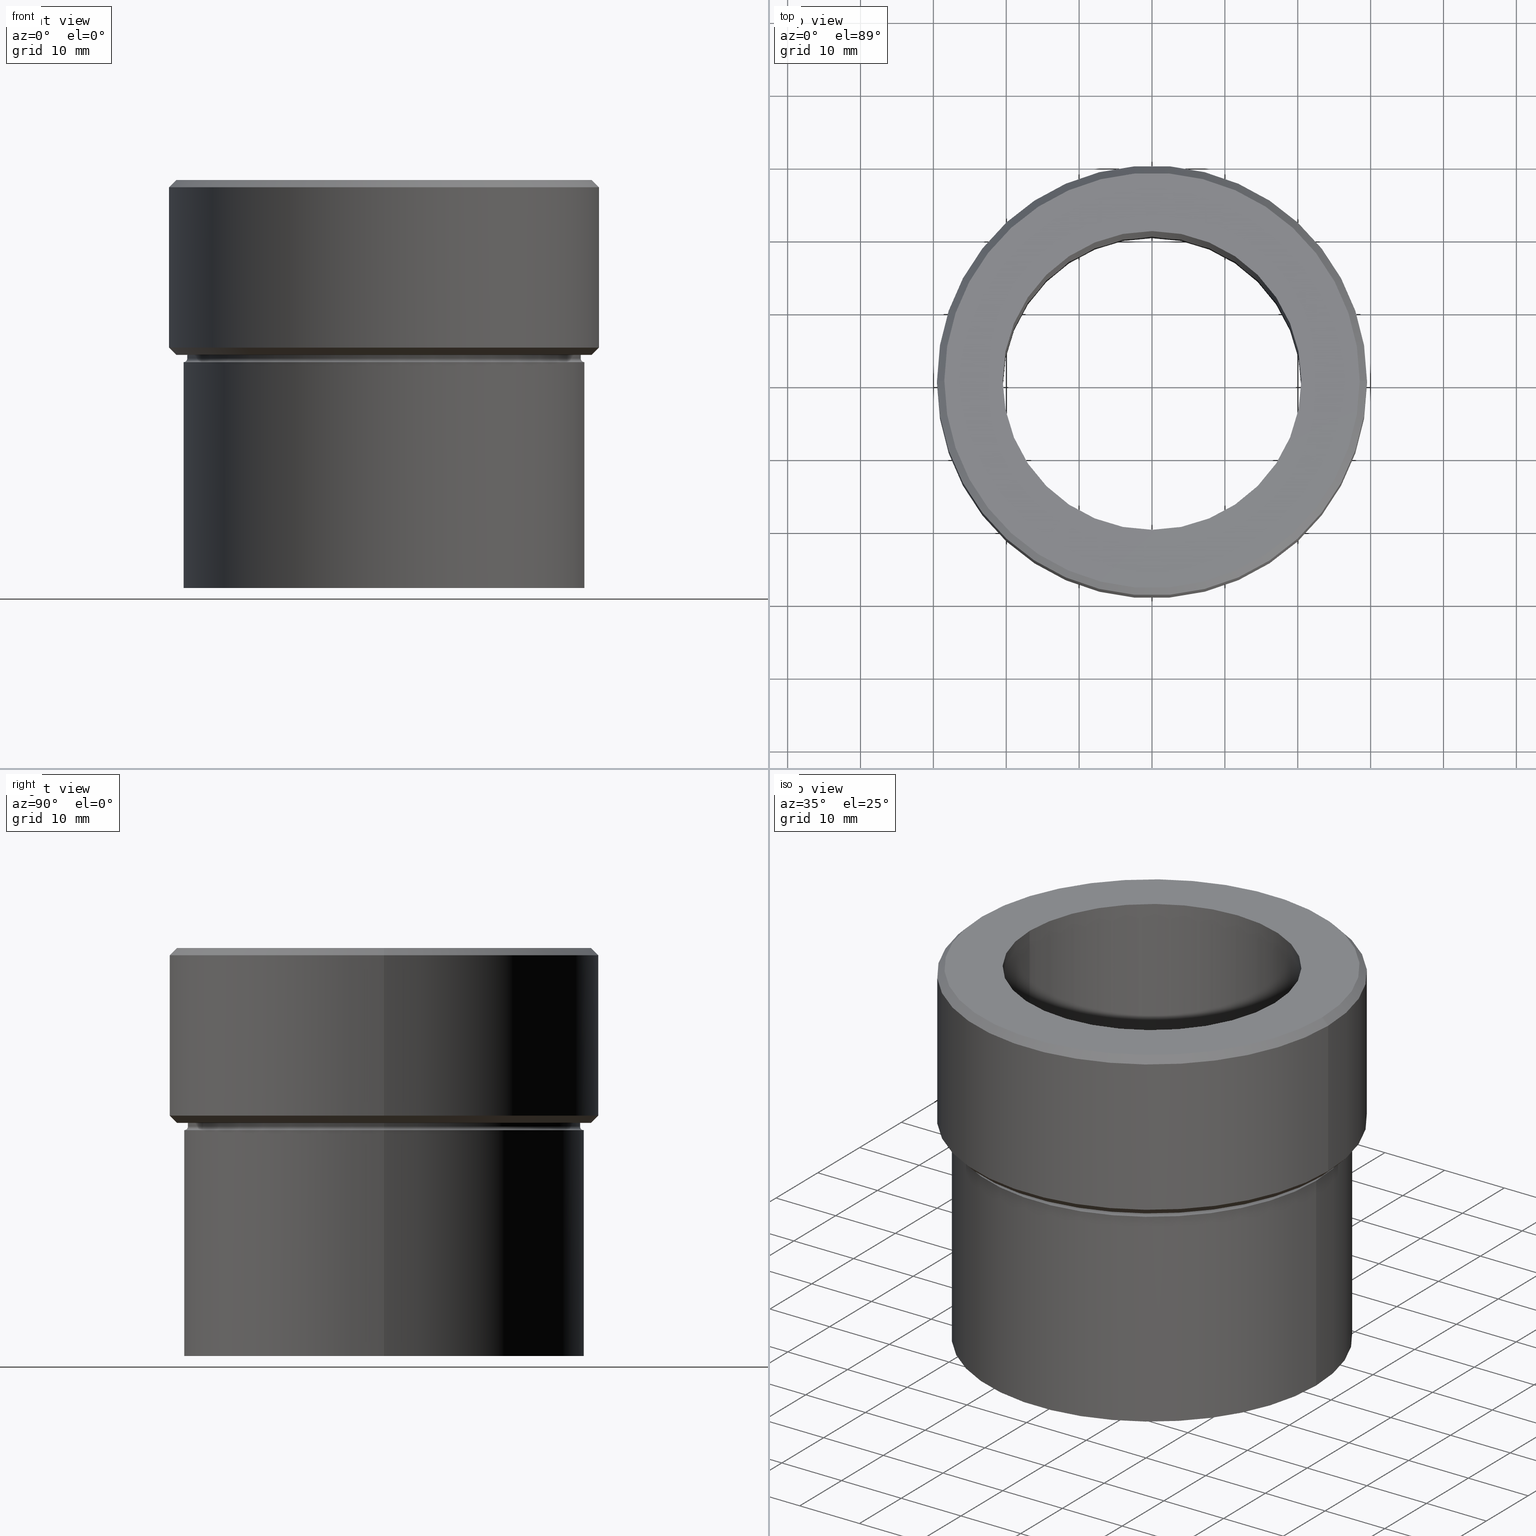
[diagram: canonical four-view strip — front | top / right | iso, engineering-drawing reading convention]
A machine part, canonical four-view strip (front | top / right | iso — engineering-drawing reading convention). The complete STEP part file that produces these views, byte-faithful:
ISO-10303-21;
HEADER;
FILE_DESCRIPTION (( 'STEP AP203' ),
    '1' );
FILE_NAME ('7c15.STEP',
    '2024-01-08T12:24:20',
    ( '' ),
    ( '' ),
    'SwSTEP 2.0',
    'SolidWorks 2019',
    '' );
FILE_SCHEMA (( 'CONFIG_CONTROL_DESIGN' ));
ENDSEC;

DATA;
#1 = DIRECTION ( 'NONE',  ( 1.000000000000000000, 0.000000000000000000, 0.000000000000000000 ) ) ;
#2 = ORIENTED_EDGE ( 'NONE', *, *, #433, .F. ) ;
#3 = CARTESIAN_POINT ( 'NONE',  ( 0.000000000000000000, 29.50000000000000000, -24.00000000000000000 ) ) ;
#4 = EDGE_CURVE ( 'NONE', #325, #446, #497, .T. ) ;
#5 = ORIENTED_EDGE ( 'NONE', *, *, #4, .T. ) ;
#6 = AXIS2_PLACEMENT_3D ( 'NONE', #429, #229, #460 ) ;
#7 = CARTESIAN_POINT ( 'NONE',  ( 20.50000000000000000, 0.000000000000000000, -56.00000000000000711 ) ) ;
#8 = ORIENTED_EDGE ( 'NONE', *, *, #162, .F. ) ;
#9 = APPROVAL_ROLE ( '' ) ;
#10 = ORIENTED_EDGE ( 'NONE', *, *, #306, .F. ) ;
#11 = EDGE_CURVE ( 'NONE', #33, #415, #373, .T. ) ;
#12 = CALENDAR_DATE ( 2024, 8, 1 ) ;
#13 = DIRECTION ( 'NONE',  ( -0.000000000000000000, -0.000000000000000000, 1.000000000000000000 ) ) ;
#14 = VECTOR ( 'NONE', #524, 1000.000000000000000 ) ;
#15 = AXIS2_PLACEMENT_3D ( 'NONE', #453, #74, #250 ) ;
#16 = CARTESIAN_POINT ( 'NONE',  ( -20.50000000000000000, 2.510525938252074481E-15, -56.00000000000000711 ) ) ;
#17 = FACE_BOUND ( 'NONE', #399, .T. ) ;
#18 = CYLINDRICAL_SURFACE ( 'NONE', #425, 20.50000000000000000 ) ;
#19 = EDGE_CURVE ( 'NONE', #439, #81, #264, .T. ) ;
#20 = CALENDAR_DATE ( 2024, 8, 1 ) ;
#21 = AXIS2_PLACEMENT_3D ( 'NONE', #506, #176, #179 ) ;
#22 = CARTESIAN_POINT ( 'NONE',  ( 0.000000000000000000, 0.000000000000000000, -24.49999999999999645 ) ) ;
#23 = FACE_OUTER_BOUND ( 'NONE', #36, .T. ) ;
#24 = ADVANCED_FACE ( 'NONE', ( #260 ), #471, .T. ) ;
#25 = DIRECTION ( 'NONE',  ( 0.000000000000000000, 0.000000000000000000, -1.000000000000000000 ) ) ;
#26 = ORIENTED_EDGE ( 'NONE', *, *, #31, .T. ) ;
#27 = AXIS2_PLACEMENT_3D ( 'NONE', #22, #239, #153 ) ;
#28 = CARTESIAN_POINT ( 'NONE',  ( -20.50000000000000000, 2.510525938252074481E-15, -75.00000000000000000 ) ) ;
#29 = ORIENTED_EDGE ( 'NONE', *, *, #123, .T. ) ;
#30 = CARTESIAN_POINT ( 'NONE',  ( 0.000000000000000000, 0.000000000000000000, -24.00000000000000000 ) ) ;
#31 = EDGE_CURVE ( 'NONE', #129, #217, #383, .T. ) ;
#32 = CARTESIAN_POINT ( 'NONE',  ( 27.50000000000000355, 0.000000000000000000, 0.000000000000000000 ) ) ;
#33 = VERTEX_POINT ( 'NONE', #56 ) ;
#34 = AXIS2_PLACEMENT_3D ( 'NONE', #472, #25, #234 ) ;
#35 = LINE ( 'NONE', #284, #100 ) ;
#36 = EDGE_LOOP ( 'NONE', ( #280, #78, #449, #10 ) ) ;
#37 = FACE_OUTER_BOUND ( 'NONE', #164, .T. ) ;
#38 = EDGE_LOOP ( 'NONE', ( #522, #64 ) ) ;
#39 = CIRCLE ( 'NONE', #181, 28.49999999999998224 ) ;
#40 = CARTESIAN_POINT ( 'NONE',  ( -28.49999999999998224, 0.000000000000000000, 0.000000000000000000 ) ) ;
#41 = ORIENTED_EDGE ( 'NONE', *, *, #479, .F. ) ;
#42 = CARTESIAN_POINT ( 'NONE',  ( -28.49999999999998224, 0.000000000000000000, 0.000000000000000000 ) ) ;
#43 = ORIENTED_EDGE ( 'NONE', *, *, #456, .T. ) ;
#44 = DATE_TIME_ROLE ( 'creation_date' ) ;
#45 = ORIENTED_EDGE ( 'NONE', *, *, #319, .T. ) ;
#46 = EDGE_CURVE ( 'NONE', #358, #217, #417, .T. ) ;
#47 = DIRECTION ( 'NONE',  ( 1.000000000000000000, 0.000000000000000000, 0.000000000000000000 ) ) ;
#48 = CIRCLE ( 'NONE', #509, 20.50000000000000000 ) ;
#49 = DIRECTION ( 'NONE',  ( -0.000000000000000000, -0.000000000000000000, 1.000000000000000000 ) ) ;
#50 =( NAMED_UNIT ( * ) SI_UNIT ( $, .STERADIAN. ) SOLID_ANGLE_UNIT ( ) );
#51 = CARTESIAN_POINT ( 'NONE',  ( 0.000000000000000000, 0.000000000000000000, -24.00000000000000000 ) ) ;
#52 = PERSON_AND_ORGANIZATION_ROLE ( 'classification_officer' ) ;
#53 = FACE_OUTER_BOUND ( 'NONE', #107, .T. ) ;
#54 = DIRECTION ( 'NONE',  ( 1.000000000000000000, 0.000000000000000000, 0.000000000000000000 ) ) ;
#55 = EDGE_CURVE ( 'NONE', #446, #325, #86, .T. ) ;
#56 = CARTESIAN_POINT ( 'NONE',  ( 28.49999999999998224, 3.551475717527322452E-15, 0.000000000000000000 ) ) ;
#57 = CIRCLE ( 'NONE', #191, 27.50000000000000355 ) ;
#58 = DIRECTION ( 'NONE',  ( -0.000000000000000000, -0.000000000000000000, 1.000000000000000000 ) ) ;
#59 = CIRCLE ( 'NONE', #168, 29.50000000000000000 ) ;
#60 = DIRECTION ( 'NONE',  ( -0.000000000000000000, -0.000000000000000000, 1.000000000000000000 ) ) ;
#61 = EDGE_LOOP ( 'NONE', ( #192, #490, #289, #256 ) ) ;
#62 = EDGE_CURVE ( 'NONE', #443, #478, #187, .T. ) ;
#63 = DIRECTION ( 'NONE',  ( 1.000000000000000000, 0.000000000000000000, 0.000000000000000000 ) ) ;
#64 = ORIENTED_EDGE ( 'NONE', *, *, #278, .F. ) ;
#65 = DIRECTION ( 'NONE',  ( 0.000000000000000000, 0.000000000000000000, -1.000000000000000000 ) ) ;
#66 = CIRCLE ( 'NONE', #159, 29.50000000000000000 ) ;
#67 = FACE_OUTER_BOUND ( 'NONE', #172, .T. ) ;
#68 = CARTESIAN_POINT ( 'NONE',  ( -27.50000000000000355, 3.367778697655222096E-15, -24.99999999999999645 ) ) ;
#69 = ORIENTED_EDGE ( 'NONE', *, *, #62, .F. ) ;
#70 = AXIS2_PLACEMENT_3D ( 'NONE', #3, #80, #294 ) ;
#71 = FACE_OUTER_BOUND ( 'NONE', #151, .T. ) ;
#72 = ORIENTED_EDGE ( 'NONE', *, *, #401, .F. ) ;
#73 = DIRECTION ( 'NONE',  ( 0.000000000000000000, 0.000000000000000000, -1.000000000000000000 ) ) ;
#74 = DIRECTION ( 'NONE',  ( -0.000000000000000000, -0.000000000000000000, 1.000000000000000000 ) ) ;
#75 = AXIS2_PLACEMENT_3D ( 'NONE', #257, #263, #342 ) ;
#76 = PRODUCT_DEFINITION ( 'NEZN�M�', '', #79, #189 ) ;
#77 = DIRECTION ( 'NONE',  ( -1.000000000000000000, 0.000000000000000000, -0.000000000000000000 ) ) ;
#78 = ORIENTED_EDGE ( 'NONE', *, *, #178, .T. ) ;
#79 = PRODUCT_DEFINITION_FORMATION_WITH_SPECIFIED_SOURCE ( 'LIBOVOLN�', '', #286, .NOT_KNOWN. ) ;
#80 = DIRECTION ( 'NONE',  ( 0.000000000000000000, 0.000000000000000000, -1.000000000000000000 ) ) ;
#81 = VERTEX_POINT ( 'NONE', #16 ) ;
#82 = CARTESIAN_POINT ( 'NONE',  ( 29.50000000000000000, 0.000000000000000000, -22.99999999999999289 ) ) ;
#84 = AXIS2_PLACEMENT_3D ( 'NONE', #450, #128, #326 ) ;
#83 = CC_DESIGN_PERSON_AND_ORGANIZATION_ASSIGNMENT ( #427, #52, ( #422 ) ) ;
#85 = ORIENTED_EDGE ( 'NONE', *, *, #350, .F. ) ;
#86 = CIRCLE ( 'NONE', #75, 29.50000000000000000 ) ;
#87 = VECTOR ( 'NONE', #140, 1000.000000000000000 ) ;
#88 = PERSON_AND_ORGANIZATION_ROLE ( 'creator' ) ;
#89 = DIRECTION ( 'NONE',  ( -1.000000000000000000, 1.224646799147349509E-16, 0.000000000000000000 ) ) ;
#90 =( LENGTH_UNIT ( ) NAMED_UNIT ( * ) SI_UNIT ( .MILLI., .METRE. ) );
#91 = AXIS2_PLACEMENT_3D ( 'NONE', #144, #183, #142 ) ;
#92 = FACE_OUTER_BOUND ( 'NONE', #133, .T. ) ;
#93 = CALENDAR_DATE ( 2024, 8, 1 ) ;
#94 = CARTESIAN_POINT ( 'NONE',  ( 27.00000000000000355, 0.000000000000000000, -24.00000000000000000 ) ) ;
#95 = CIRCLE ( 'NONE', #467, 28.49999999999998224 ) ;
#96 = ADVANCED_FACE ( 'NONE', ( #92 ), #513, .F. ) ;
#97 = FACE_OUTER_BOUND ( 'NONE', #330, .T. ) ;
#98 = DIRECTION ( 'NONE',  ( -0.000000000000000000, -0.000000000000000000, 1.000000000000000000 ) ) ;
#99 = DIRECTION ( 'NONE',  ( 1.000000000000000000, 0.000000000000000000, 0.000000000000000000 ) ) ;
#100 = VECTOR ( 'NONE', #163, 1000.000000000000000 ) ;
#101 = DIRECTION ( 'NONE',  ( 1.000000000000000000, 0.000000000000000000, 0.000000000000000000 ) ) ;
#102 = EDGE_CURVE ( 'NONE', #478, #217, #487, .T. ) ;
#103 = ORIENTED_EDGE ( 'NONE', *, *, #319, .F. ) ;
#104 = AXIS2_PLACEMENT_3D ( 'NONE', #477, #108, #398 ) ;
#105 = PERSON_AND_ORGANIZATION ( #122, #360 ) ;
#106 = DIRECTION ( 'NONE',  ( 0.000000000000000000, 0.000000000000000000, -1.000000000000000000 ) ) ;
#107 = EDGE_LOOP ( 'NONE', ( #334, #26, #274, #2 ) ) ;
#108 = DIRECTION ( 'NONE',  ( -0.000000000000000000, -0.000000000000000000, 1.000000000000000000 ) ) ;
#109 = ORIENTED_EDGE ( 'NONE', *, *, #178, .F. ) ;
#110 =( GEOMETRIC_REPRESENTATION_CONTEXT ( 3 ) GLOBAL_UNCERTAINTY_ASSIGNED_CONTEXT ( ( #482 ) ) GLOBAL_UNIT_ASSIGNED_CONTEXT ( ( #90, #384, #50 ) ) REPRESENTATION_CONTEXT ( 'NONE', 'WORKASPACE' ) );
#111 = DIRECTION ( 'NONE',  ( -1.000000000000000000, 0.000000000000000000, 0.000000000000000000 ) ) ;
#112 = ORIENTED_EDGE ( 'NONE', *, *, #123, .F. ) ;
#113 = CIRCLE ( 'NONE', #451, 27.00000000000000355 ) ;
#114 = EDGE_CURVE ( 'NONE', #358, #211, #348, .T. ) ;
#115 = DIRECTION ( 'NONE',  ( -0.000000000000000000, -0.000000000000000000, 1.000000000000000000 ) ) ;
#116 = ORIENTED_EDGE ( 'NONE', *, *, #4, .F. ) ;
#117 = APPLICATION_CONTEXT ( 'configuration controlled 3d designs of mechanical parts and assemblies' ) ;
#118 = CARTESIAN_POINT ( 'NONE',  ( 0.000000000000000000, 0.000000000000000000, 0.000000000000000000 ) ) ;
#119 = ORIENTED_EDGE ( 'NONE', *, *, #456, .F. ) ;
#120 = LOCAL_TIME ( 13, 24, 20.00000000000000000, #418 ) ;
#121 = DIRECTION ( 'NONE',  ( 1.000000000000000000, 0.000000000000000000, 0.000000000000000000 ) ) ;
#122 = PERSON ( 'NEUR�EN�', 'NEUR�EN�', 'NEUR�EN�', ('NEUR�EN�'), ('NEUR�EN�'), ('NEUR�EN�') ) ;
#123 = EDGE_CURVE ( 'NONE', #155, #211, #113, .T. ) ;
#124 = EDGE_LOOP ( 'NONE', ( #364, #45, #379, #72 ) ) ;
#125 = CIRCLE ( 'NONE', #246, 27.50000000000000711 ) ;
#126 = FACE_BOUND ( 'NONE', #404, .T. ) ;
#127 = ORIENTED_EDGE ( 'NONE', *, *, #251, .T. ) ;
#128 = DIRECTION ( 'NONE',  ( -0.000000000000000000, -0.000000000000000000, 1.000000000000000000 ) ) ;
#129 = VERTEX_POINT ( 'NONE', #303 ) ;
#130 = APPROVAL ( #378, 'NEUR�EN�' ) ;
#131 = APPROVAL_PERSON_ORGANIZATION ( #219, #130, #9 ) ;
#132 = CARTESIAN_POINT ( 'NONE',  ( 27.00000000000000355, 0.000000000000000000, -24.49999999999999645 ) ) ;
#133 = EDGE_LOOP ( 'NONE', ( #109, #332, #455, #69 ) ) ;
#134 = CALENDAR_DATE ( 2024, 8, 1 ) ;
#135 = CIRCLE ( 'NONE', #233, 28.49999999999998224 ) ;
#136 = DIRECTION ( 'NONE',  ( 1.000000000000000000, 0.000000000000000000, 0.000000000000000000 ) ) ;
#137 = MECHANICAL_CONTEXT ( 'NONE', #117, 'mechanical' ) ;
#138 = CARTESIAN_POINT ( 'NONE',  ( -27.00000000000000355, 3.306546357697854128E-15, 0.000000000000000000 ) ) ;
#139 = APPROVAL_DATE_TIME ( #507, #526 ) ;
#140 = DIRECTION ( 'NONE',  ( -0.000000000000000000, -0.000000000000000000, 1.000000000000000000 ) ) ;
#141 = APPROVAL ( #431, 'NEUR�EN�' ) ;
#142 = DIRECTION ( 'NONE',  ( 1.000000000000000000, 0.000000000000000000, 0.000000000000000000 ) ) ;
#143 = CYLINDRICAL_SURFACE ( 'NONE', #441, 27.50000000000000355 ) ;
#144 = CARTESIAN_POINT ( 'NONE',  ( 0.000000000000000000, 0.000000000000000000, 0.000000000000000000 ) ) ;
#145 = DIRECTION ( 'NONE',  ( 1.000000000000000000, 0.000000000000000000, 0.000000000000000000 ) ) ;
#146 = ADVANCED_FACE ( 'NONE', ( #53 ), #143, .T. ) ;
#147 = DATE_AND_TIME ( #20, #371 ) ;
#148 = DIRECTION ( 'NONE',  ( -0.000000000000000000, -0.000000000000000000, 1.000000000000000000 ) ) ;
#149 = AXIS2_PLACEMENT_3D ( 'NONE', #527, #73, #77 ) ;
#150 = FACE_OUTER_BOUND ( 'NONE', #61, .T. ) ;
#151 = EDGE_LOOP ( 'NONE', ( #269, #127 ) ) ;
#152 = AXIS2_PLACEMENT_3D ( 'NONE', #51, #308, #344 ) ;
#153 = DIRECTION ( 'NONE',  ( 1.000000000000000000, 0.000000000000000000, 0.000000000000000000 ) ) ;
#154 = CALENDAR_DATE ( 2024, 8, 1 ) ;
#155 = VERTEX_POINT ( 'NONE', #94 ) ;
#156 = EDGE_CURVE ( 'NONE', #411, #129, #125, .T. ) ;
#157 = LOCAL_TIME ( 13, 24, 20.00000000000000000, #341 ) ;
#158 = DIRECTION ( 'NONE',  ( -0.000000000000000000, -0.000000000000000000, 1.000000000000000000 ) ) ;
#159 = AXIS2_PLACEMENT_3D ( 'NONE', #215, #291, #121 ) ;
#160 = CARTESIAN_POINT ( 'NONE',  ( 0.000000000000000000, 0.000000000000000000, 0.000000000000000000 ) ) ;
#161 = ORIENTED_EDGE ( 'NONE', *, *, #385, .T. ) ;
#162 = EDGE_CURVE ( 'NONE', #483, #327, #374, .T. ) ;
#163 = DIRECTION ( 'NONE',  ( -0.000000000000000000, -0.000000000000000000, 1.000000000000000000 ) ) ;
#164 = EDGE_LOOP ( 'NONE', ( #194, #530, #112, #41 ) ) ;
#165 = DATE_AND_TIME ( #154, #201 ) ;
#166 = LINE ( 'NONE', #32, #351 ) ;
#167 = ORIENTED_EDGE ( 'NONE', *, *, #216, .T. ) ;
#168 = AXIS2_PLACEMENT_3D ( 'NONE', #355, #106, #518 ) ;
#169 = DIRECTION ( 'NONE',  ( -0.000000000000000000, -0.000000000000000000, 1.000000000000000000 ) ) ;
#170 = EDGE_LOOP ( 'NONE', ( #356, #8, #161, #116 ) ) ;
#171 = CARTESIAN_POINT ( 'NONE',  ( 0.000000000000000000, 0.000000000000000000, 0.000000000000000000 ) ) ;
#172 = EDGE_LOOP ( 'NONE', ( #103, #245, #366, #370 ) ) ;
#173 = CARTESIAN_POINT ( 'NONE',  ( 0.000000000000000000, 0.000000000000000000, 0.000000000000000000 ) ) ;
#174 = DIRECTION ( 'NONE',  ( 1.224646799147353207E-16, 1.000000000000000000, 0.000000000000000000 ) ) ;
#175 = CONICAL_SURFACE ( 'NONE', #225, 29.50000000000000000, 0.7853981633974517207 ) ;
#176 = DIRECTION ( 'NONE',  ( -0.000000000000000000, -0.000000000000000000, 1.000000000000000000 ) ) ;
#177 = VECTOR ( 'NONE', #428, 1000.000000000000000 ) ;
#178 = EDGE_CURVE ( 'NONE', #358, #443, #287, .T. ) ;
#179 = DIRECTION ( 'NONE',  ( 1.000000000000000000, 0.000000000000000000, 0.000000000000000000 ) ) ;
#180 = PERSON_AND_ORGANIZATION ( #122, #360 ) ;
#181 = AXIS2_PLACEMENT_3D ( 'NONE', #160, #324, #408 ) ;
#182 = CARTESIAN_POINT ( 'NONE',  ( 0.000000000000000000, 0.000000000000000000, -75.00000000000000000 ) ) ;
#183 = DIRECTION ( 'NONE',  ( 0.000000000000000000, 0.000000000000000000, 1.000000000000000000 ) ) ;
#184 = DIRECTION ( 'NONE',  ( 1.000000000000000000, 0.000000000000000000, 0.000000000000000000 ) ) ;
#185 = CIRCLE ( 'NONE', #254, 20.50000000000000000 ) ;
#186 = ADVANCED_FACE ( 'NONE', ( #386 ), #18, .F. ) ;
#187 = CIRCLE ( 'NONE', #444, 0.5000000000000004441 ) ;
#188 = LINE ( 'NONE', #349, #321 ) ;
#189 = DESIGN_CONTEXT ( 'detailed design', #206, 'design' ) ;
#190 = DIRECTION ( 'NONE',  ( -0.000000000000000000, -0.000000000000000000, 1.000000000000000000 ) ) ;
#191 = AXIS2_PLACEMENT_3D ( 'NONE', #410, #529, #1 ) ;
#192 = ORIENTED_EDGE ( 'NONE', *, *, #31, .F. ) ;
#193 = CARTESIAN_POINT ( 'NONE',  ( 0.000000000000000000, 0.000000000000000000, 0.000000000000000000 ) ) ;
#194 = ORIENTED_EDGE ( 'NONE', *, *, #350, .T. ) ;
#195 = CLOSED_SHELL ( 'NONE', ( #186, #96, #440, #205, #146, #463, #24, #511, #312, #407, #335, #368, #448, #197, #238, #258, #298 ) ) ;
#196 = DIRECTION ( 'NONE',  ( 1.000000000000000000, 0.000000000000000000, 0.000000000000000000 ) ) ;
#197 = ADVANCED_FACE ( 'NONE', ( #462 ), #175, .T. ) ;
#198 = ORIENTED_EDGE ( 'NONE', *, *, #414, .T. ) ;
#199 = LINE ( 'NONE', #28, #14 ) ;
#200 = ORIENTED_EDGE ( 'NONE', *, *, #306, .T. ) ;
#201 = LOCAL_TIME ( 13, 24, 20.00000000000000000, #516 ) ;
#202 = PLANE ( 'NONE',  #149 ) ;
#203 = EDGE_LOOP ( 'NONE', ( #220, #520, #276, #353 ) ) ;
#205 = ADVANCED_FACE ( 'NONE', ( #299 ), #495, .T. ) ;
#204 = AXIS2_PLACEMENT_3D ( 'NONE', #309, #60, #275 ) ;
#206 = APPLICATION_CONTEXT ( 'configuration controlled 3d designs of mechanical parts and assemblies' ) ;
#207 = CARTESIAN_POINT ( 'NONE',  ( -29.50000000000000000, 3.612708057484691604E-15, -22.99999999999999289 ) ) ;
#208 = ORIENTED_EDGE ( 'NONE', *, *, #102, .T. ) ;
#209 = COORDINATED_UNIVERSAL_TIME_OFFSET ( 1, 0, .AHEAD. ) ;
#210 = CARTESIAN_POINT ( 'NONE',  ( 27.50000000000000711, 0.000000000000000000, -56.00000000000000711 ) ) ;
#211 = VERTEX_POINT ( 'NONE', #434 ) ;
#212 = VECTOR ( 'NONE', #247, 1000.000000000000114 ) ;
#213 = CARTESIAN_POINT ( 'NONE',  ( -20.50000000000000000, 2.510525938252074481E-15, 0.000000000000000000 ) ) ;
#214 = ORIENTED_EDGE ( 'NONE', *, *, #391, .T. ) ;
#215 = CARTESIAN_POINT ( 'NONE',  ( 0.000000000000000000, 0.000000000000000000, -1.000000000000004441 ) ) ;
#216 = EDGE_CURVE ( 'NONE', #415, #435, #59, .T. ) ;
#217 = VERTEX_POINT ( 'NONE', #68 ) ;
#218 = ADVANCED_BREP_SHAPE_REPRESENTATION ( '7c15', ( #402, #91 ), #110 ) ;
#219 = PERSON_AND_ORGANIZATION ( #122, #360 ) ;
#220 = ORIENTED_EDGE ( 'NONE', *, *, #345, .F. ) ;
#221 = CC_DESIGN_APPROVAL ( #526, ( #76 ) ) ;
#222 = PERSON_AND_ORGANIZATION_ROLE ( 'design_supplier' ) ;
#223 = DIRECTION ( 'NONE',  ( -0.000000000000000000, -0.000000000000000000, 1.000000000000000000 ) ) ;
#224 = CC_DESIGN_PERSON_AND_ORGANIZATION_ASSIGNMENT ( #387, #512, ( #76 ) ) ;
#225 = AXIS2_PLACEMENT_3D ( 'NONE', #267, #432, #136 ) ;
#226 = DIRECTION ( 'NONE',  ( 1.000000000000000000, 0.000000000000000000, 0.000000000000000000 ) ) ;
#227 = DIRECTION ( 'NONE',  ( -0.000000000000000000, -0.000000000000000000, 1.000000000000000000 ) ) ;
#228 = APPLICATION_PROTOCOL_DEFINITION ( 'international standard', 'config_control_design', 1994, #206 ) ;
#229 = DIRECTION ( 'NONE',  ( 0.000000000000000000, 0.000000000000000000, -1.000000000000000000 ) ) ;
#230 = CC_DESIGN_PERSON_AND_ORGANIZATION_ASSIGNMENT ( #180, #255, ( #286 ) ) ;
#231 = SHAPE_DEFINITION_REPRESENTATION ( #393, #218 ) ;
#232 = CARTESIAN_POINT ( 'NONE',  ( 27.50000000000000355, 0.000000000000000000, -24.49999999999999645 ) ) ;
#233 = AXIS2_PLACEMENT_3D ( 'NONE', #30, #442, #481 ) ;
#234 = DIRECTION ( 'NONE',  ( -1.000000000000000000, 0.000000000000000000, 0.000000000000000000 ) ) ;
#235 = ORIENTED_EDGE ( 'NONE', *, *, #46, .F. ) ;
#236 = DIRECTION ( 'NONE',  ( 1.000000000000000000, 0.000000000000000000, 0.000000000000000000 ) ) ;
#237 = ORIENTED_EDGE ( 'NONE', *, *, #55, .T. ) ;
#238 = ADVANCED_FACE ( 'NONE', ( #515 ), #484, .T. ) ;
#239 = DIRECTION ( 'NONE',  ( -0.000000000000000000, -0.000000000000000000, 1.000000000000000000 ) ) ;
#240 = CIRCLE ( 'NONE', #304, 27.00000000000000355 ) ;
#241 = CYLINDRICAL_SURFACE ( 'NONE', #338, 20.50000000000000000 ) ;
#242 = CARTESIAN_POINT ( 'NONE',  ( -29.50000000000000000, 3.612708057484691604E-15, -22.99999999999999289 ) ) ;
#243 = PRODUCT_RELATED_PRODUCT_CATEGORY ( 'detail', '', ( #286 ) ) ;
#244 = CARTESIAN_POINT ( 'NONE',  ( 29.50000000000000000, 0.000000000000000000, -22.99999999999999289 ) ) ;
#245 = ORIENTED_EDGE ( 'NONE', *, *, #272, .T. ) ;
#246 = AXIS2_PLACEMENT_3D ( 'NONE', #390, #49, #424 ) ;
#247 = DIRECTION ( 'NONE',  ( -0.7071067811865500152, 8.659560562354963673E-17, 0.7071067811865451302 ) ) ;
#248 = ORIENTED_EDGE ( 'NONE', *, *, #11, .F. ) ;
#249 = DIRECTION ( 'NONE',  ( 1.000000000000000000, 0.000000000000000000, 0.000000000000000000 ) ) ;
#250 = DIRECTION ( 'NONE',  ( -1.000000000000000000, 0.000000000000000000, 0.000000000000000000 ) ) ;
#251 = EDGE_CURVE ( 'NONE', #327, #483, #135, .T. ) ;
#252 = CARTESIAN_POINT ( 'NONE',  ( 29.50000000000000000, 0.000000000000000000, -1.000000000000004441 ) ) ;
#253 = ORIENTED_EDGE ( 'NONE', *, *, #251, .F. ) ;
#254 = AXIS2_PLACEMENT_3D ( 'NONE', #320, #315, #270 ) ;
#255 = PERSON_AND_ORGANIZATION_ROLE ( 'design_owner' ) ;
#256 = ORIENTED_EDGE ( 'NONE', *, *, #488, .F. ) ;
#257 = CARTESIAN_POINT ( 'NONE',  ( 0.000000000000000000, 0.000000000000000000, -22.99999999999999289 ) ) ;
#258 = ADVANCED_FACE ( 'NONE', ( #359 ), #261, .F. ) ;
#259 = LOCAL_TIME ( 13, 24, 20.00000000000000000, #503 ) ;
#260 = FACE_OUTER_BOUND ( 'NONE', #419, .T. ) ;
#261 = TOROIDAL_SURFACE ( 'NONE', #27, 27.50000000000000355, 0.5000000000000000000 ) ;
#262 = PERSON_AND_ORGANIZATION ( #122, #360 ) ;
#263 = DIRECTION ( 'NONE',  ( -0.000000000000000000, -0.000000000000000000, 1.000000000000000000 ) ) ;
#264 = CIRCLE ( 'NONE', #6, 20.50000000000000000 ) ;
#265 = DIRECTION ( 'NONE',  ( -0.000000000000000000, -0.000000000000000000, 1.000000000000000000 ) ) ;
#266 = CARTESIAN_POINT ( 'NONE',  ( -27.50000000000000355, 3.367778697655222096E-15, -24.49999999999999645 ) ) ;
#267 = CARTESIAN_POINT ( 'NONE',  ( 0.000000000000000000, 0.000000000000000000, -22.99999999999999289 ) ) ;
#268 = CARTESIAN_POINT ( 'NONE',  ( 0.000000000000000000, 0.000000000000000000, -24.49999999999999645 ) ) ;
#269 = ORIENTED_EDGE ( 'NONE', *, *, #162, .T. ) ;
#270 = DIRECTION ( 'NONE',  ( 1.000000000000000000, 0.000000000000000000, 0.000000000000000000 ) ) ;
#271 = EDGE_LOOP ( 'NONE', ( #502, #525 ) ) ;
#272 = EDGE_CURVE ( 'NONE', #81, #439, #346, .T. ) ;
#273 = DIRECTION ( 'NONE',  ( -0.000000000000000000, -0.000000000000000000, 1.000000000000000000 ) ) ;
#274 = ORIENTED_EDGE ( 'NONE', *, *, #102, .F. ) ;
#275 = DIRECTION ( 'NONE',  ( 1.000000000000000000, 0.000000000000000000, 0.000000000000000000 ) ) ;
#276 = ORIENTED_EDGE ( 'NONE', *, *, #377, .F. ) ;
#277 = AXIS2_PLACEMENT_3D ( 'NONE', #504, #98, #184 ) ;
#278 = EDGE_CURVE ( 'NONE', #129, #411, #389, .T. ) ;
#279 = CARTESIAN_POINT ( 'NONE',  ( -27.00000000000000355, 3.306546357697854128E-15, -24.49999999999999645 ) ) ;
#280 = ORIENTED_EDGE ( 'NONE', *, *, #114, .F. ) ;
#281 = DIRECTION ( 'NONE',  ( -0.000000000000000000, -0.000000000000000000, 1.000000000000000000 ) ) ;
#282 = EDGE_LOOP ( 'NONE', ( #235, #85, #292, #208 ) ) ;
#283 = APPROVAL_PERSON_ORGANIZATION ( #423, #526, #343 ) ;
#284 = CARTESIAN_POINT ( 'NONE',  ( 20.50000000000000000, 0.000000000000000000, -75.00000000000000000 ) ) ;
#285 = EDGE_LOOP ( 'NONE', ( #248, #119, #214, #486 ) ) ;
#286 = PRODUCT ( '7c15', '7c15', '', ( #137 ) ) ;
#287 = CIRCLE ( 'NONE', #354, 27.00000000000000355 ) ;
#288 = DIRECTION ( 'NONE',  ( -1.000000000000000000, 0.000000000000000000, 0.000000000000000000 ) ) ;
#289 = ORIENTED_EDGE ( 'NONE', *, *, #433, .T. ) ;
#290 = EDGE_CURVE ( 'NONE', #437, #496, #185, .T. ) ;
#291 = DIRECTION ( 'NONE',  ( 0.000000000000000000, 0.000000000000000000, -1.000000000000000000 ) ) ;
#292 = ORIENTED_EDGE ( 'NONE', *, *, #62, .T. ) ;
#293 = CC_DESIGN_APPROVAL ( #130, ( #79 ) ) ;
#294 = DIRECTION ( 'NONE',  ( -1.000000000000000000, 0.000000000000000000, -0.000000000000000000 ) ) ;
#295 = ORIENTED_EDGE ( 'NONE', *, *, #55, .F. ) ;
#296 = VECTOR ( 'NONE', #492, 1000.000000000000114 ) ;
#297 = DATE_AND_TIME ( #134, #259 ) ;
#298 = ADVANCED_FACE ( 'NONE', ( #67 ), #241, .F. ) ;
#299 = FACE_OUTER_BOUND ( 'NONE', #316, .T. ) ;
#300 = CARTESIAN_POINT ( 'NONE',  ( 0.000000000000000000, 0.000000000000000000, -24.49999999999999645 ) ) ;
#301 = VECTOR ( 'NONE', #169, 1000.000000000000000 ) ;
#302 = DATE_AND_TIME ( #12, #120 ) ;
#303 = CARTESIAN_POINT ( 'NONE',  ( -27.50000000000001066, 3.367778697655222885E-15, -56.00000000000000711 ) ) ;
#304 = AXIS2_PLACEMENT_3D ( 'NONE', #268, #158, #236 ) ;
#305 = CARTESIAN_POINT ( 'NONE',  ( 0.000000000000000000, 0.000000000000000000, 0.000000000000000000 ) ) ;
#306 = EDGE_CURVE ( 'NONE', #211, #155, #474, .T. ) ;
#307 = APPLICATION_PROTOCOL_DEFINITION ( 'international standard', 'config_control_design', 1994, #117 ) ;
#308 = DIRECTION ( 'NONE',  ( 0.000000000000000000, 0.000000000000000000, -1.000000000000000000 ) ) ;
#309 = CARTESIAN_POINT ( 'NONE',  ( 0.000000000000000000, 0.000000000000000000, -56.00000000000000711 ) ) ;
#310 = CYLINDRICAL_SURFACE ( 'NONE', #84, 27.50000000000000355 ) ;
#312 = ADVANCED_FACE ( 'NONE', ( #352 ), #357, .T. ) ;
#311 = AXIS2_PLACEMENT_3D ( 'NONE', #193, #148, #392 ) ;
#313 = VECTOR ( 'NONE', #223, 1000.000000000000000 ) ;
#314 = DATE_TIME_ROLE ( 'classification_date' ) ;
#315 = DIRECTION ( 'NONE',  ( -0.000000000000000000, -0.000000000000000000, 1.000000000000000000 ) ) ;
#316 = EDGE_LOOP ( 'NONE', ( #253, #198, #295, #322 ) ) ;
#317 = CARTESIAN_POINT ( 'NONE',  ( 0.000000000000000000, 0.000000000000000000, -22.99999999999999289 ) ) ;
#318 = ORIENTED_EDGE ( 'NONE', *, *, #505, .F. ) ;
#319 = EDGE_CURVE ( 'NONE', #81, #496, #199, .T. ) ;
#320 = CARTESIAN_POINT ( 'NONE',  ( 0.000000000000000000, 0.000000000000000000, 0.000000000000000000 ) ) ;
#321 = VECTOR ( 'NONE', #517, 1000.000000000000000 ) ;
#322 = ORIENTED_EDGE ( 'NONE', *, *, #385, .F. ) ;
#323 = AXIS2_PLACEMENT_3D ( 'NONE', #266, #174, #89 ) ;
#324 = DIRECTION ( 'NONE',  ( -0.000000000000000000, -0.000000000000000000, 1.000000000000000000 ) ) ;
#325 = VERTEX_POINT ( 'NONE', #242 ) ;
#326 = DIRECTION ( 'NONE',  ( 1.000000000000000000, 0.000000000000000000, 0.000000000000000000 ) ) ;
#327 = VERTEX_POINT ( 'NONE', #436 ) ;
#328 = PLANE ( 'NONE',  #70 ) ;
#329 = CC_DESIGN_DATE_AND_TIME_ASSIGNMENT ( #147, #314, ( #422 ) ) ;
#330 = EDGE_LOOP ( 'NONE', ( #43, #409 ) ) ;
#331 = CARTESIAN_POINT ( 'NONE',  ( 0.000000000000000000, 0.000000000000000000, 0.000000000000000000 ) ) ;
#332 = ORIENTED_EDGE ( 'NONE', *, *, #46, .T. ) ;
#333 = DIRECTION ( 'NONE',  ( 0.000000000000000000, 0.000000000000000000, -1.000000000000000000 ) ) ;
#334 = ORIENTED_EDGE ( 'NONE', *, *, #156, .T. ) ;
#335 = ADVANCED_FACE ( 'NONE', ( #23 ), #485, .T. ) ;
#336 = CARTESIAN_POINT ( 'NONE',  ( -29.50000000000000000, 3.612708057484691604E-15, 0.000000000000000000 ) ) ;
#337 = DIRECTION ( 'NONE',  ( 0.000000000000000000, 0.000000000000000000, -1.000000000000000000 ) ) ;
#338 = AXIS2_PLACEMENT_3D ( 'NONE', #475, #190, #400 ) ;
#339 = VECTOR ( 'NONE', #457, 1000.000000000000000 ) ;
#340 = DIRECTION ( 'NONE',  ( 1.000000000000000000, 0.000000000000000000, 0.000000000000000000 ) ) ;
#341 = COORDINATED_UNIVERSAL_TIME_OFFSET ( 1, 0, .AHEAD. ) ;
#342 = DIRECTION ( 'NONE',  ( -1.000000000000000000, 0.000000000000000000, 0.000000000000000000 ) ) ;
#343 = APPROVAL_ROLE ( '' ) ;
#344 = DIRECTION ( 'NONE',  ( -1.000000000000000000, 0.000000000000000000, 0.000000000000000000 ) ) ;
#345 = EDGE_CURVE ( 'NONE', #33, #493, #95, .T. ) ;
#346 = CIRCLE ( 'NONE', #416, 20.50000000000000000 ) ;
#347 = PLANE ( 'NONE',  #464 ) ;
#348 = LINE ( 'NONE', #138, #87 ) ;
#349 = CARTESIAN_POINT ( 'NONE',  ( 29.50000000000000000, 0.000000000000000000, 0.000000000000000000 ) ) ;
#350 = EDGE_CURVE ( 'NONE', #443, #358, #240, .T. ) ;
#351 = VECTOR ( 'NONE', #452, 1000.000000000000000 ) ;
#352 = FACE_OUTER_BOUND ( 'NONE', #473, .T. ) ;
#353 = ORIENTED_EDGE ( 'NONE', *, *, #391, .F. ) ;
#354 = AXIS2_PLACEMENT_3D ( 'NONE', #300, #227, #340 ) ;
#355 = CARTESIAN_POINT ( 'NONE',  ( 0.000000000000000000, 0.000000000000000000, -1.000000000000004441 ) ) ;
#356 = ORIENTED_EDGE ( 'NONE', *, *, #414, .F. ) ;
#357 = CYLINDRICAL_SURFACE ( 'NONE', #311, 29.50000000000000000 ) ;
#358 = VERTEX_POINT ( 'NONE', #279 ) ;
#359 = FACE_OUTER_BOUND ( 'NONE', #282, .T. ) ;
#360 = ORGANIZATION ( 'NEUR�EN�', 'NEUR�EN�', '' ) ;
#361 = EDGE_CURVE ( 'NONE', #446, #415, #188, .T. ) ;
#362 = FACE_BOUND ( 'NONE', #271, .T. ) ;
#363 = AXIS2_PLACEMENT_3D ( 'NONE', #317, #445, #63 ) ;
#364 = ORIENTED_EDGE ( 'NONE', *, *, #19, .T. ) ;
#365 = CARTESIAN_POINT ( 'NONE',  ( 27.00000000000000355, 0.000000000000000000, 0.000000000000000000 ) ) ;
#366 = ORIENTED_EDGE ( 'NONE', *, *, #401, .T. ) ;
#367 = APPROVAL_DATE_TIME ( #165, #141 ) ;
#368 = ADVANCED_FACE ( 'NONE', ( #150 ), #310, .T. ) ;
#369 = CARTESIAN_POINT ( 'NONE',  ( 28.49999999999998224, 0.000000000000000000, -24.00000000000000000 ) ) ;
#370 = ORIENTED_EDGE ( 'NONE', *, *, #290, .T. ) ;
#371 = LOCAL_TIME ( 13, 24, 20.00000000000000000, #209 ) ;
#372 = LINE ( 'NONE', #365, #301 ) ;
#373 = LINE ( 'NONE', #382, #177 ) ;
#374 = CIRCLE ( 'NONE', #152, 28.49999999999998224 ) ;
#375 = CARTESIAN_POINT ( 'NONE',  ( -29.50000000000000000, 3.612708057484691604E-15, -1.000000000000004441 ) ) ;
#376 = ORIENTED_EDGE ( 'NONE', *, *, #290, .F. ) ;
#377 = EDGE_CURVE ( 'NONE', #435, #415, #66, .T. ) ;
#378 = APPROVAL_STATUS ( 'not_yet_approved' ) ;
#379 = ORIENTED_EDGE ( 'NONE', *, *, #500, .T. ) ;
#380 = CONICAL_SURFACE ( 'NONE', #523, 28.49999999999998224, 0.7853981633974533860 ) ;
#381 = SECURITY_CLASSIFICATION_LEVEL ( 'unclassified' ) ;
#382 = CARTESIAN_POINT ( 'NONE',  ( 28.49999999999998224, 3.490243377569954483E-15, 0.000000000000000000 ) ) ;
#383 = LINE ( 'NONE', #508, #313 ) ;
#384 =( NAMED_UNIT ( * ) PLANE_ANGLE_UNIT ( ) SI_UNIT ( $, .RADIAN. ) );
#385 = EDGE_CURVE ( 'NONE', #483, #446, #454, .T. ) ;
#386 = FACE_OUTER_BOUND ( 'NONE', #124, .T. ) ;
#387 = PERSON_AND_ORGANIZATION ( #122, #360 ) ;
#388 = DIRECTION ( 'NONE',  ( 0.000000000000000000, -1.000000000000000000, 0.000000000000000000 ) ) ;
#389 = CIRCLE ( 'NONE', #204, 27.50000000000000711 ) ;
#390 = CARTESIAN_POINT ( 'NONE',  ( 0.000000000000000000, 0.000000000000000000, -56.00000000000000711 ) ) ;
#391 = EDGE_CURVE ( 'NONE', #493, #435, #403, .T. ) ;
#392 = DIRECTION ( 'NONE',  ( 1.000000000000000000, 0.000000000000000000, 0.000000000000000000 ) ) ;
#393 = PRODUCT_DEFINITION_SHAPE ( 'NONE', 'NONE',  #76 ) ;
#394 = AXIS2_PLACEMENT_3D ( 'NONE', #118, #281, #249 ) ;
#395 = CARTESIAN_POINT ( 'NONE',  ( 0.000000000000000000, 0.000000000000000000, -56.00000000000000711 ) ) ;
#396 = ORIENTED_EDGE ( 'NONE', *, *, #505, .T. ) ;
#397 = AXIS2_PLACEMENT_3D ( 'NONE', #521, #273, #101 ) ;
#398 = DIRECTION ( 'NONE',  ( 1.000000000000000000, 0.000000000000000000, 0.000000000000000000 ) ) ;
#399 = EDGE_LOOP ( 'NONE', ( #376, #499 ) ) ;
#400 = DIRECTION ( 'NONE',  ( 1.000000000000000000, 0.000000000000000000, 0.000000000000000000 ) ) ;
#401 = EDGE_CURVE ( 'NONE', #439, #437, #35, .T. ) ;
#402 = MANIFOLD_SOLID_BREP ( 'Odebrat vysunut�m1', #195 ) ;
#403 = LINE ( 'NONE', #42, #339 ) ;
#404 = EDGE_LOOP ( 'NONE', ( #29, #200 ) ) ;
#405 = FACE_OUTER_BOUND ( 'NONE', #38, .T. ) ;
#406 = ORIENTED_EDGE ( 'NONE', *, *, #377, .T. ) ;
#407 = ADVANCED_FACE ( 'NONE', ( #71, #126 ), #328, .T. ) ;
#408 = DIRECTION ( 'NONE',  ( 1.000000000000000000, 0.000000000000000000, 0.000000000000000000 ) ) ;
#409 = ORIENTED_EDGE ( 'NONE', *, *, #345, .T. ) ;
#410 = CARTESIAN_POINT ( 'NONE',  ( 0.000000000000000000, 0.000000000000000000, -24.99999999999999645 ) ) ;
#411 = VERTEX_POINT ( 'NONE', #210 ) ;
#412 = CC_DESIGN_SECURITY_CLASSIFICATION ( #422, ( #79 ) ) ;
#413 = LINE ( 'NONE', #207, #212 ) ;
#414 = EDGE_CURVE ( 'NONE', #327, #325, #413, .T. ) ;
#415 = VERTEX_POINT ( 'NONE', #252 ) ;
#416 = AXIS2_PLACEMENT_3D ( 'NONE', #395, #65, #111 ) ;
#417 = CIRCLE ( 'NONE', #323, 0.5000000000000004441 ) ;
#418 = COORDINATED_UNIVERSAL_TIME_OFFSET ( 1, 0, .AHEAD. ) ;
#419 = EDGE_LOOP ( 'NONE', ( #237, #396, #406, #458 ) ) ;
#420 = PERSON_AND_ORGANIZATION ( #122, #360 ) ;
#421 = CARTESIAN_POINT ( 'NONE',  ( 0.000000000000000000, 0.000000000000000000, -24.00000000000000000 ) ) ;
#422 = SECURITY_CLASSIFICATION ( '', '', #381 ) ;
#423 = PERSON_AND_ORGANIZATION ( #122, #360 ) ;
#424 = DIRECTION ( 'NONE',  ( 1.000000000000000000, 0.000000000000000000, 0.000000000000000000 ) ) ;
#425 = AXIS2_PLACEMENT_3D ( 'NONE', #182, #510, #99 ) ;
#426 = CC_DESIGN_PERSON_AND_ORGANIZATION_ASSIGNMENT ( #262, #88, ( #79 ) ) ;
#427 = PERSON_AND_ORGANIZATION ( #122, #360 ) ;
#428 = DIRECTION ( 'NONE',  ( 0.7071067811865512365, 8.659560562354979697E-17, -0.7071067811865439090 ) ) ;
#429 = CARTESIAN_POINT ( 'NONE',  ( 0.000000000000000000, 0.000000000000000000, -56.00000000000000711 ) ) ;
#430 = APPROVAL_PERSON_ORGANIZATION ( #105, #141, #531 ) ;
#431 = APPROVAL_STATUS ( 'not_yet_approved' ) ;
#432 = DIRECTION ( 'NONE',  ( -0.000000000000000000, -0.000000000000000000, 1.000000000000000000 ) ) ;
#433 = EDGE_CURVE ( 'NONE', #411, #478, #166, .T. ) ;
#434 = CARTESIAN_POINT ( 'NONE',  ( -27.00000000000000355, 3.306546357697854128E-15, -24.00000000000000000 ) ) ;
#435 = VERTEX_POINT ( 'NONE', #375 ) ;
#436 = CARTESIAN_POINT ( 'NONE',  ( -28.49999999999998224, 3.551475717527322452E-15, -24.00000000000000000 ) ) ;
#437 = VERTEX_POINT ( 'NONE', #494 ) ;
#438 = CARTESIAN_POINT ( 'NONE',  ( 0.000000000000000000, 0.000000000000000000, 0.000000000000000000 ) ) ;
#439 = VERTEX_POINT ( 'NONE', #7 ) ;
#440 = ADVANCED_FACE ( 'NONE', ( #501 ), #380, .T. ) ;
#441 = AXIS2_PLACEMENT_3D ( 'NONE', #305, #13, #466 ) ;
#442 = DIRECTION ( 'NONE',  ( 0.000000000000000000, 0.000000000000000000, -1.000000000000000000 ) ) ;
#443 = VERTEX_POINT ( 'NONE', #132 ) ;
#444 = AXIS2_PLACEMENT_3D ( 'NONE', #232, #388, #337 ) ;
#445 = DIRECTION ( 'NONE',  ( -0.000000000000000000, -0.000000000000000000, 1.000000000000000000 ) ) ;
#446 = VERTEX_POINT ( 'NONE', #82 ) ;
#447 = CARTESIAN_POINT ( 'NONE',  ( 27.50000000000000355, 0.000000000000000000, -24.99999999999999645 ) ) ;
#448 = ADVANCED_FACE ( 'NONE', ( #362, #405 ), #202, .T. ) ;
#449 = ORIENTED_EDGE ( 'NONE', *, *, #479, .T. ) ;
#450 = CARTESIAN_POINT ( 'NONE',  ( 0.000000000000000000, 0.000000000000000000, 0.000000000000000000 ) ) ;
#451 = AXIS2_PLACEMENT_3D ( 'NONE', #421, #514, #145 ) ;
#452 = DIRECTION ( 'NONE',  ( -0.000000000000000000, -0.000000000000000000, 1.000000000000000000 ) ) ;
#453 = CARTESIAN_POINT ( 'NONE',  ( 0.000000000000000000, 0.000000000000000000, -22.99999999999999289 ) ) ;
#454 = LINE ( 'NONE', #244, #296 ) ;
#455 = ORIENTED_EDGE ( 'NONE', *, *, #488, .T. ) ;
#456 = EDGE_CURVE ( 'NONE', #493, #33, #39, .T. ) ;
#457 = DIRECTION ( 'NONE',  ( -0.7071067811865512365, 0.000000000000000000, -0.7071067811865439090 ) ) ;
#458 = ORIENTED_EDGE ( 'NONE', *, *, #361, .F. ) ;
#459 = APPROVAL_DATE_TIME ( #297, #130 ) ;
#460 = DIRECTION ( 'NONE',  ( -1.000000000000000000, 0.000000000000000000, 0.000000000000000000 ) ) ;
#461 = APPROVAL_STATUS ( 'not_yet_approved' ) ;
#462 = FACE_OUTER_BOUND ( 'NONE', #170, .T. ) ;
#463 = ADVANCED_FACE ( 'NONE', ( #37 ), #489, .T. ) ;
#464 = AXIS2_PLACEMENT_3D ( 'NONE', #173, #465, #54 ) ;
#465 = DIRECTION ( 'NONE',  ( 0.000000000000000000, -0.000000000000000000, 1.000000000000000000 ) ) ;
#466 = DIRECTION ( 'NONE',  ( 1.000000000000000000, 0.000000000000000000, 0.000000000000000000 ) ) ;
#467 = AXIS2_PLACEMENT_3D ( 'NONE', #438, #115, #196 ) ;
#468 = LINE ( 'NONE', #336, #480 ) ;
#469 = CARTESIAN_POINT ( 'NONE',  ( 0.000000000000000000, 0.000000000000000000, 0.000000000000000000 ) ) ;
#470 = CC_DESIGN_PERSON_AND_ORGANIZATION_ASSIGNMENT ( #420, #222, ( #79 ) ) ;
#471 = CYLINDRICAL_SURFACE ( 'NONE', #476, 29.50000000000000000 ) ;
#472 = CARTESIAN_POINT ( 'NONE',  ( 0.000000000000000000, 0.000000000000000000, 0.000000000000000000 ) ) ;
#473 = EDGE_LOOP ( 'NONE', ( #318, #5, #528, #167 ) ) ;
#474 = CIRCLE ( 'NONE', #104, 27.00000000000000355 ) ;
#475 = CARTESIAN_POINT ( 'NONE',  ( 0.000000000000000000, 0.000000000000000000, -75.00000000000000000 ) ) ;
#476 = AXIS2_PLACEMENT_3D ( 'NONE', #469, #58, #226 ) ;
#477 = CARTESIAN_POINT ( 'NONE',  ( 0.000000000000000000, 0.000000000000000000, -24.00000000000000000 ) ) ;
#478 = VERTEX_POINT ( 'NONE', #447 ) ;
#479 = EDGE_CURVE ( 'NONE', #443, #155, #372, .T. ) ;
#480 = VECTOR ( 'NONE', #265, 1000.000000000000000 ) ;
#481 = DIRECTION ( 'NONE',  ( -1.000000000000000000, 0.000000000000000000, 0.000000000000000000 ) ) ;
#482 = UNCERTAINTY_MEASURE_WITH_UNIT (LENGTH_MEASURE( 1.000000000000000082E-05 ), #90, 'distance_accuracy_value', 'NONE');
#483 = VERTEX_POINT ( 'NONE', #369 ) ;
#484 = CONICAL_SURFACE ( 'NONE', #34, 28.49999999999998224, 0.7853981633974533860 ) ;
#485 = CYLINDRICAL_SURFACE ( 'NONE', #397, 27.00000000000000355 ) ;
#486 = ORIENTED_EDGE ( 'NONE', *, *, #216, .F. ) ;
#487 = CIRCLE ( 'NONE', #21, 27.50000000000000355 ) ;
#488 = EDGE_CURVE ( 'NONE', #217, #478, #57, .T. ) ;
#489 = CYLINDRICAL_SURFACE ( 'NONE', #394, 27.00000000000000355 ) ;
#490 = ORIENTED_EDGE ( 'NONE', *, *, #278, .T. ) ;
#491 = CC_DESIGN_APPROVAL ( #141, ( #422 ) ) ;
#492 = DIRECTION ( 'NONE',  ( 0.7071067811865500152, 0.000000000000000000, 0.7071067811865451302 ) ) ;
#493 = VERTEX_POINT ( 'NONE', #40 ) ;
#494 = CARTESIAN_POINT ( 'NONE',  ( 20.50000000000000000, 0.000000000000000000, 0.000000000000000000 ) ) ;
#495 = CONICAL_SURFACE ( 'NONE', #363, 29.50000000000000000, 0.7853981633974517207 ) ;
#496 = VERTEX_POINT ( 'NONE', #213 ) ;
#497 = CIRCLE ( 'NONE', #15, 29.50000000000000000 ) ;
#498 = DIRECTION ( 'NONE',  ( -0.000000000000000000, -0.000000000000000000, 1.000000000000000000 ) ) ;
#499 = ORIENTED_EDGE ( 'NONE', *, *, #500, .F. ) ;
#500 = EDGE_CURVE ( 'NONE', #496, #437, #48, .T. ) ;
#501 = FACE_OUTER_BOUND ( 'NONE', #203, .T. ) ;
#502 = ORIENTED_EDGE ( 'NONE', *, *, #19, .F. ) ;
#503 = COORDINATED_UNIVERSAL_TIME_OFFSET ( 1, 0, .AHEAD. ) ;
#504 = CARTESIAN_POINT ( 'NONE',  ( 0.000000000000000000, 0.000000000000000000, -24.49999999999999645 ) ) ;
#505 = EDGE_CURVE ( 'NONE', #325, #435, #468, .T. ) ;
#506 = CARTESIAN_POINT ( 'NONE',  ( 0.000000000000000000, 0.000000000000000000, -24.99999999999999645 ) ) ;
#507 = DATE_AND_TIME ( #93, #157 ) ;
#508 = CARTESIAN_POINT ( 'NONE',  ( -27.50000000000000355, 3.367778697655222096E-15, 0.000000000000000000 ) ) ;
#509 = AXIS2_PLACEMENT_3D ( 'NONE', #331, #498, #47 ) ;
#510 = DIRECTION ( 'NONE',  ( -0.000000000000000000, -0.000000000000000000, 1.000000000000000000 ) ) ;
#511 = ADVANCED_FACE ( 'NONE', ( #17, #97 ), #347, .T. ) ;
#512 = PERSON_AND_ORGANIZATION_ROLE ( 'creator' ) ;
#513 = TOROIDAL_SURFACE ( 'NONE', #277, 27.50000000000000355, 0.5000000000000000000 ) ;
#514 = DIRECTION ( 'NONE',  ( -0.000000000000000000, -0.000000000000000000, 1.000000000000000000 ) ) ;
#515 = FACE_OUTER_BOUND ( 'NONE', #285, .T. ) ;
#516 = COORDINATED_UNIVERSAL_TIME_OFFSET ( 1, 0, .AHEAD. ) ;
#517 = DIRECTION ( 'NONE',  ( -0.000000000000000000, -0.000000000000000000, 1.000000000000000000 ) ) ;
#518 = DIRECTION ( 'NONE',  ( 1.000000000000000000, 0.000000000000000000, 0.000000000000000000 ) ) ;
#519 = CC_DESIGN_DATE_AND_TIME_ASSIGNMENT ( #302, #44, ( #76 ) ) ;
#520 = ORIENTED_EDGE ( 'NONE', *, *, #11, .T. ) ;
#521 = CARTESIAN_POINT ( 'NONE',  ( 0.000000000000000000, 0.000000000000000000, 0.000000000000000000 ) ) ;
#522 = ORIENTED_EDGE ( 'NONE', *, *, #156, .F. ) ;
#523 = AXIS2_PLACEMENT_3D ( 'NONE', #171, #333, #288 ) ;
#524 = DIRECTION ( 'NONE',  ( -0.000000000000000000, -0.000000000000000000, 1.000000000000000000 ) ) ;
#525 = ORIENTED_EDGE ( 'NONE', *, *, #272, .F. ) ;
#526 = APPROVAL ( #461, 'NEUR�EN�' ) ;
#527 = CARTESIAN_POINT ( 'NONE',  ( 0.000000000000000000, 27.50000000000000711, -56.00000000000000711 ) ) ;
#528 = ORIENTED_EDGE ( 'NONE', *, *, #361, .T. ) ;
#529 = DIRECTION ( 'NONE',  ( -0.000000000000000000, -0.000000000000000000, 1.000000000000000000 ) ) ;
#530 = ORIENTED_EDGE ( 'NONE', *, *, #114, .T. ) ;
#531 = APPROVAL_ROLE ( '' ) ;
ENDSEC;
END-ISO-10303-21;
